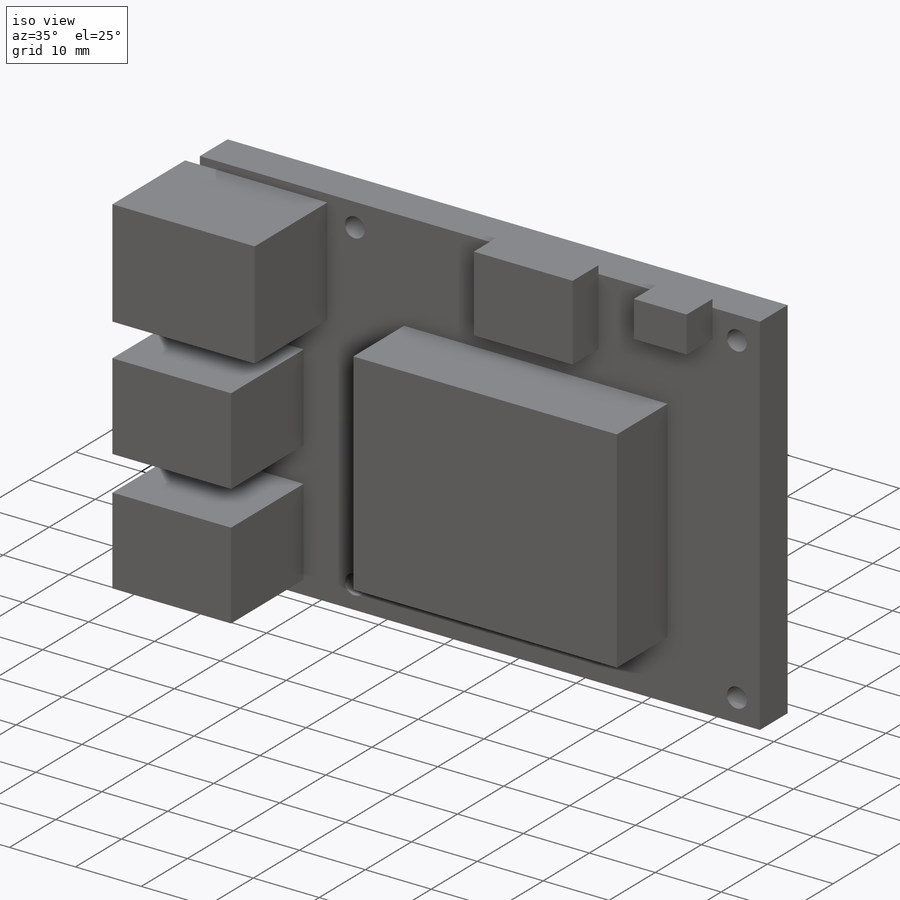
[diagram: iso view]
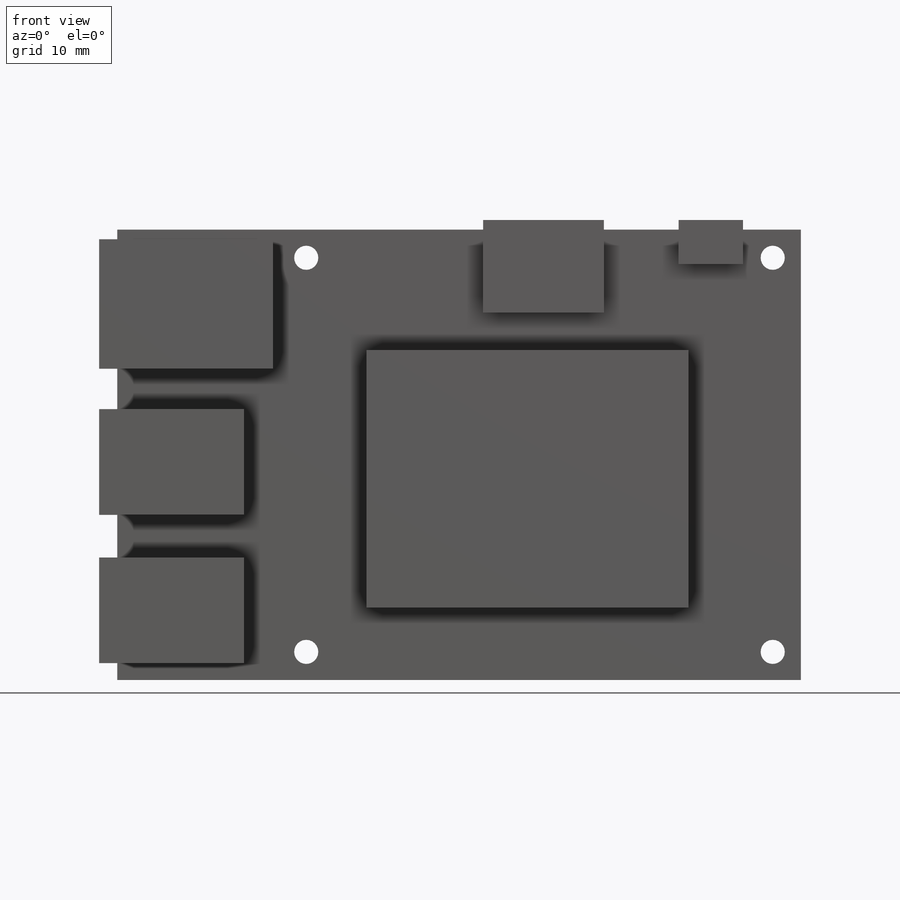
[diagram: front view]
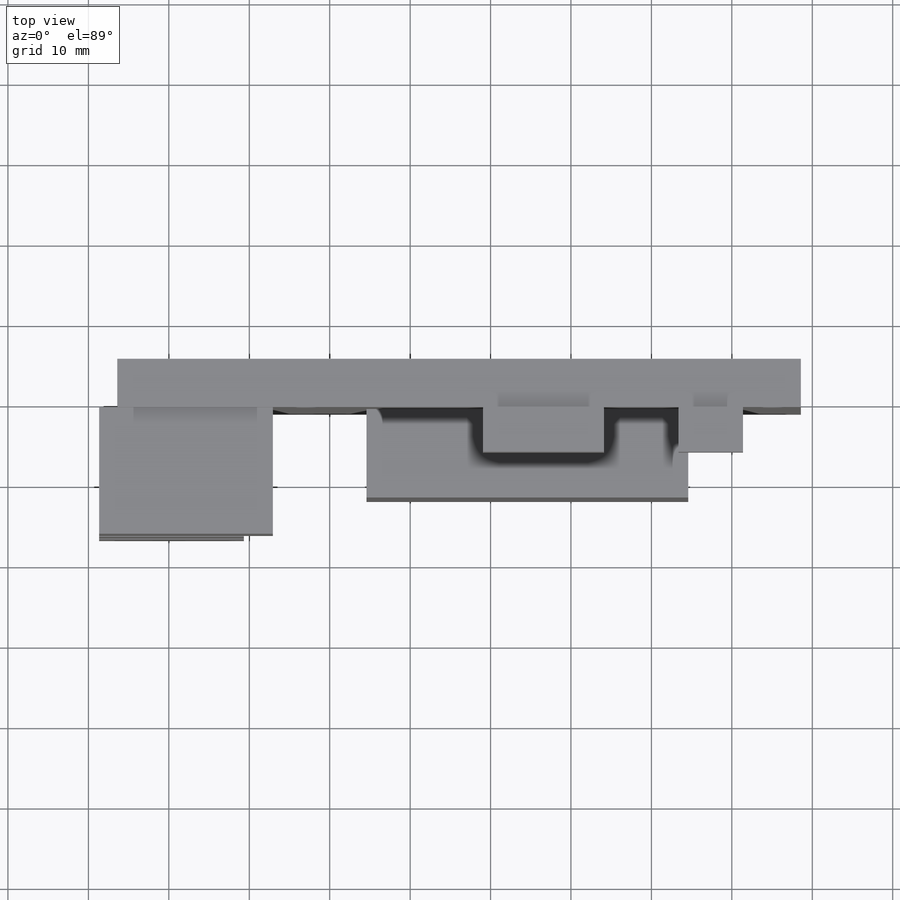
[diagram: top view]
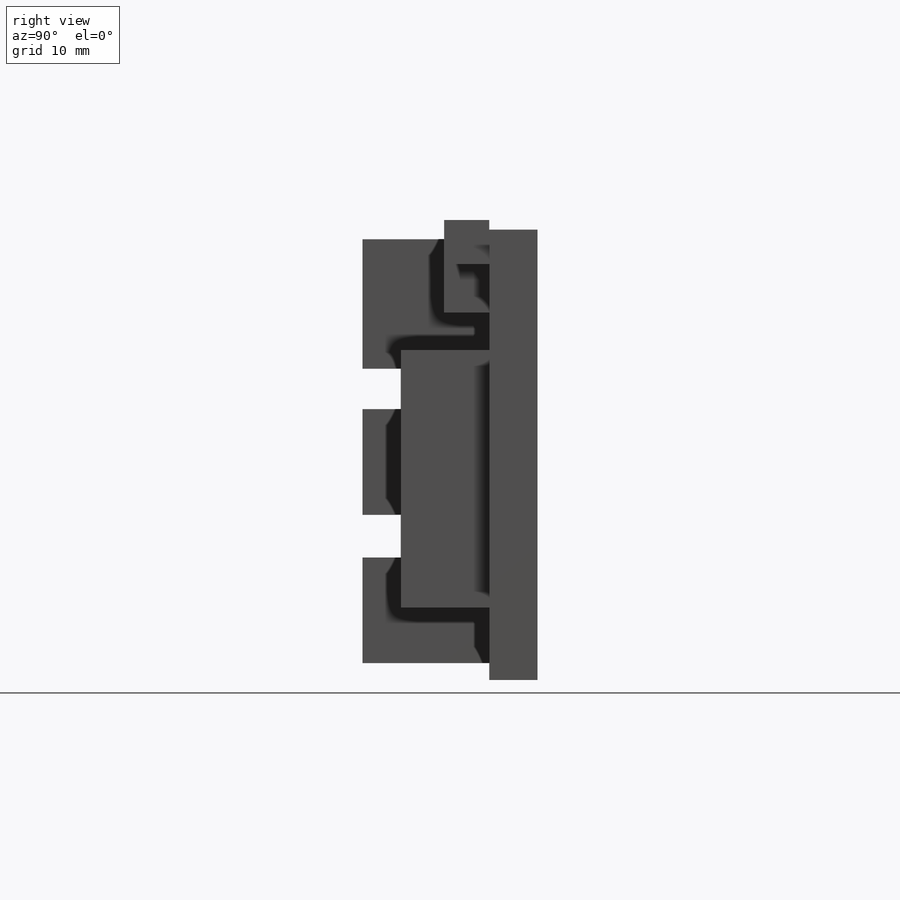
[diagram: right view]
SOLIDWORKS PART (.sldprt)
format: sldprt  version: not decoded by parser v0  size: 290,304 bytes
history: native  units: mm
features: sketch x5, extrude x5, material x1 (+12 scaffold rows collapsed)
feature tree (23):
  scaffold x12  (default folders/planes/origin — collapsed)
  material  "Material <not specified>"
  sketch  "Sketch1"  dims[D1=3.0mm D2=58.0mm D3=49.0mm D4=56.0mm D5=85.0mm D6=3.5mm]
  extrude  "Boss-Extrude1"  Depth=1mm
  extrude  "Boss-Extrude2"  [1 undecoded]
  sketch  "Sketch1<2>"  dims[D1=5.0mm]
  sketch  "Sketch3"  dims[D1=40.0mm D2=32.0mm D3=14.0mm D4=15.0mm]
  extrude  "Boss-Extrude3"  Depth=11mm
  sketch  "Sketch4"  dims[D1=18.0mm D2=13.14mm D3=10.0mm D4=5.3mm D5=2.1mm D6=21.6mm D7=1.2mm D8=16.1mm]
  extrude  "Boss-Extrude4"  Depth=15.75mm
  sketch  "Sketch5"  dims[D1=15.0mm D2=8.0mm D3=11.5mm D4=5.5mm D5=1.2mm D6=24.5mm D7=7.2mm]
  extrude  "Boss-Extrude5"  Depth=5.6mm
decode coverage: 9 of 10 modeling features carry decoded parameters
note: 1 parameter value undecoded
note: suppression state not decoded; provenance and decode notes live in map.json
